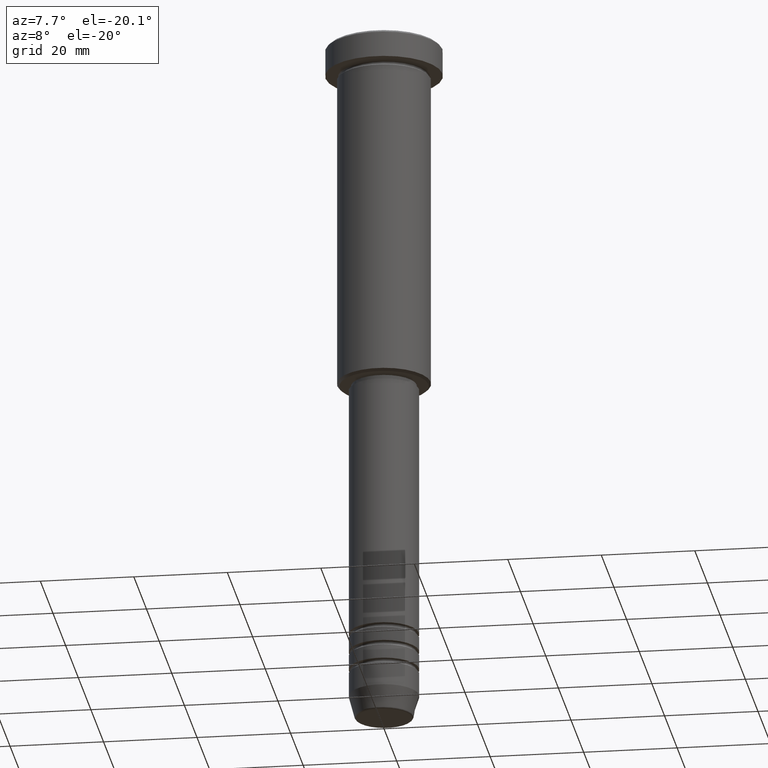
[diagram: clean part render]
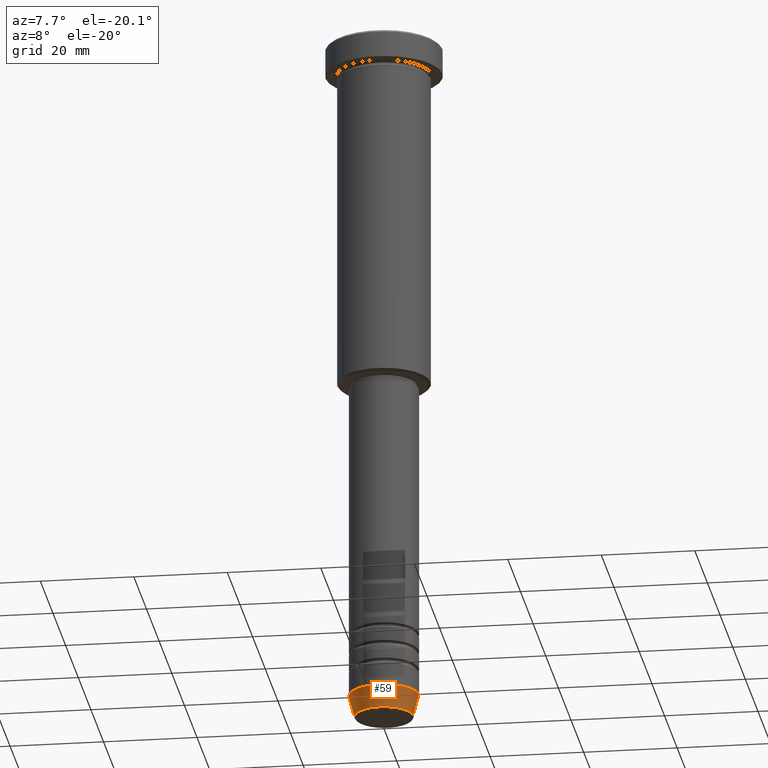
[diagram: same view with one face highlighted and labeled with its STEP entity id]
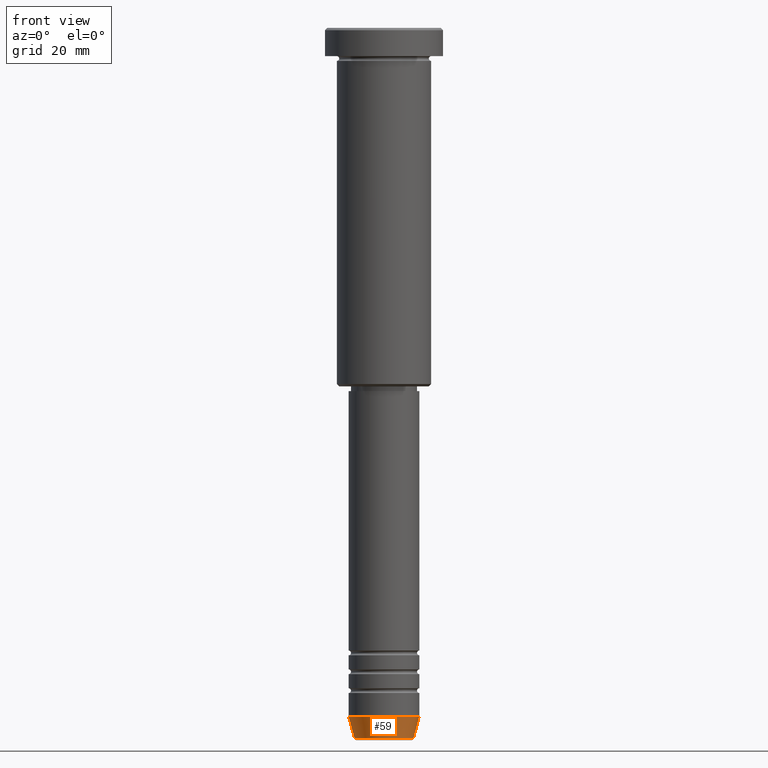
[diagram: same view with one face highlighted and labeled with its STEP entity id]
A machine part, auxiliary view. The second image highlights one B-rep face of the part: STEP entity #59.
A second angle (front view) of the same face is appended — the face is thin or edge-on in the first view.
In plain terms, the highlighted conical surface has half-angle 15 deg.
Its self-contained STEP definition (entity closure, byte-faithful):
#59 = ADVANCED_FACE ( 'NONE', ( #103 ), #418, .T. ) ;
#61 = VERTEX_POINT ( 'NONE', #156 ) ;
#75 = CIRCLE ( 'NONE', #423, 7.500000000000000000 ) ;
#84 = ORIENTED_EDGE ( 'NONE', *, *, #855, .T. ) ;
#97 = DIRECTION ( 'NONE',  ( 1.000000000000000000, 0.000000000000000000, 0.000000000000000000 ) ) ;
#103 = FACE_OUTER_BOUND ( 'NONE', #528, .T. ) ;
#108 = VECTOR ( 'NONE', #732, 1000.000000000000000 ) ;
#111 = DIRECTION ( 'NONE',  ( 1.000000000000000000, 0.000000000000000000, 0.000000000000000000 ) ) ;
#135 = DIRECTION ( 'NONE',  ( 1.000000000000000000, 0.000000000000000000, 0.000000000000000000 ) ) ;
#154 = CARTESIAN_POINT ( 'NONE',  ( -7.500000000000000000, 9.184850993605147944E-16, -146.0000000000000284 ) ) ;
#156 = CARTESIAN_POINT ( 'NONE',  ( 6.259553456999438659, 0.000000000000000000, -150.6294095225512706 ) ) ;
#177 = CARTESIAN_POINT ( 'NONE',  ( 0.000000000000000000, 0.000000000000000000, -150.6294095225512706 ) ) ;
#245 = CARTESIAN_POINT ( 'NONE',  ( 0.000000000000000000, 0.000000000000000000, -146.0000000000000284 ) ) ;
#369 = CARTESIAN_POINT ( 'NONE',  ( -7.500000000000000000, 9.184850993605147944E-16, -146.0000000000000284 ) ) ;
#374 = LINE ( 'NONE', #900, #478 ) ;
#418 = CONICAL_SURFACE ( 'NONE', #1083, 7.500000000000000000, 0.2617993877991500740 ) ;
#423 = AXIS2_PLACEMENT_3D ( 'NONE', #1018, #1108, #111 ) ;
#433 = ORIENTED_EDGE ( 'NONE', *, *, #842, .T. ) ;
#478 = VECTOR ( 'NONE', #544, 1000.000000000000000 ) ;
#528 = EDGE_LOOP ( 'NONE', ( #1054, #433, #84, #968 ) ) ;
#544 = DIRECTION ( 'NONE',  ( 0.2588190451025213501, 0.000000000000000000, 0.9659258262890680902 ) ) ;
#612 = VERTEX_POINT ( 'NONE', #154 ) ;
#627 = AXIS2_PLACEMENT_3D ( 'NONE', #177, #828, #97 ) ;
#669 = CARTESIAN_POINT ( 'NONE',  ( 7.500000000000000000, 0.000000000000000000, -146.0000000000000284 ) ) ;
#732 = DIRECTION ( 'NONE',  ( -0.2588190451025213501, 3.169619151431772337E-17, 0.9659258262890680902 ) ) ;
#787 = CARTESIAN_POINT ( 'NONE',  ( -6.259553456999438659, 8.425296549405629486E-16, -150.6294095225512706 ) ) ;
#828 = DIRECTION ( 'NONE',  ( -0.000000000000000000, -0.000000000000000000, 1.000000000000000000 ) ) ;
#842 = EDGE_CURVE ( 'NONE', #1109, #61, #1120, .T. ) ;
#855 = EDGE_CURVE ( 'NONE', #61, #1023, #374, .T. ) ;
#900 = CARTESIAN_POINT ( 'NONE',  ( 7.500000000000000000, 0.000000000000000000, -146.0000000000000284 ) ) ;
#941 = EDGE_CURVE ( 'NONE', #1109, #612, #1006, .T. ) ;
#968 = ORIENTED_EDGE ( 'NONE', *, *, #1003, .F. ) ;
#1003 = EDGE_CURVE ( 'NONE', #612, #1023, #75, .T. ) ;
#1006 = LINE ( 'NONE', #369, #108 ) ;
#1018 = CARTESIAN_POINT ( 'NONE',  ( 0.000000000000000000, 0.000000000000000000, -146.0000000000000284 ) ) ;
#1023 = VERTEX_POINT ( 'NONE', #669 ) ;
#1054 = ORIENTED_EDGE ( 'NONE', *, *, #941, .F. ) ;
#1083 = AXIS2_PLACEMENT_3D ( 'NONE', #245, #1150, #135 ) ;
#1108 = DIRECTION ( 'NONE',  ( -0.000000000000000000, -0.000000000000000000, 1.000000000000000000 ) ) ;
#1109 = VERTEX_POINT ( 'NONE', #787 ) ;
#1120 = CIRCLE ( 'NONE', #627, 6.259553456999438659 ) ;
#1150 = DIRECTION ( 'NONE',  ( -0.000000000000000000, -0.000000000000000000, 1.000000000000000000 ) ) ;